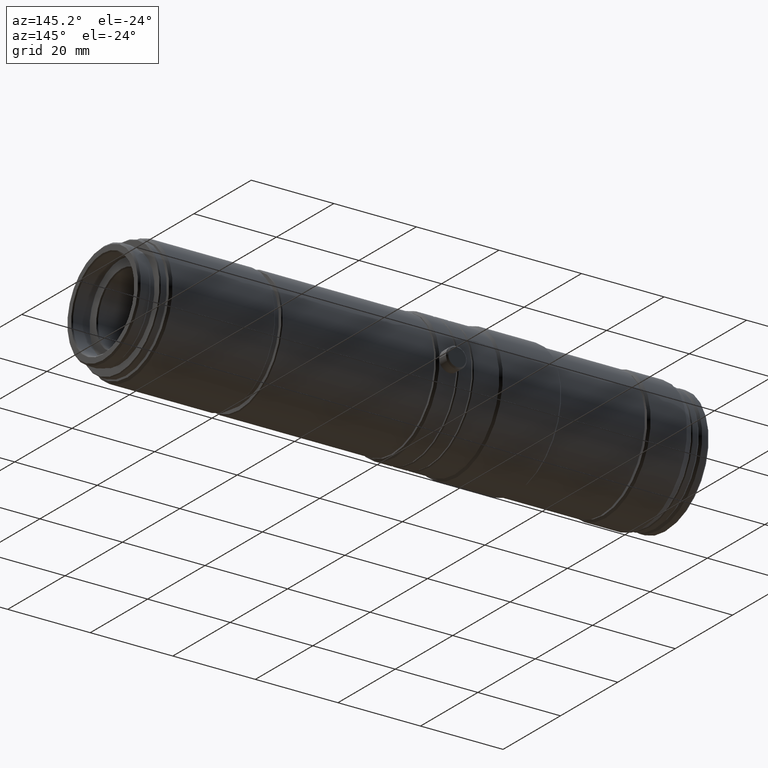
[diagram: clean part render]
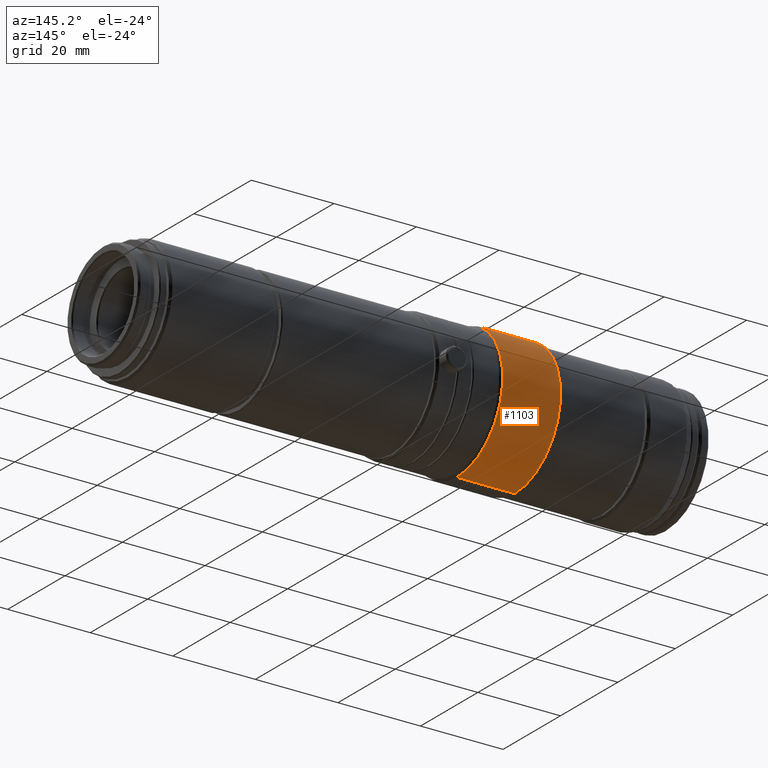
[diagram: same view with one face highlighted and labeled with its STEP entity id]
A machine part, auxiliary view. The second image highlights one B-rep face of the part: STEP entity #1103.
In plain terms, the highlighted cylindrical surface (partial cylindrical patch) has radius 15.9938 mm, axis along (-1, -0, -0).
Its self-contained STEP definition (entity closure, byte-faithful):
#103 = EDGE_CURVE ( 'NONE', #3420, #1134, #4501, .T. ) ;
#179 = DIRECTION ( 'NONE',  ( -1.000000000000000000, -0.0000000000000000000, -0.0000000000000000000 ) ) ;
#390 = ORIENTED_EDGE ( 'NONE', *, *, #1212, .T. ) ;
#393 = CIRCLE ( 'NONE', #3406, 15.99381588161426926 ) ;
#718 = CARTESIAN_POINT ( 'NONE',  ( -113.3259999999999224, -1.715136700551236072E-13, -15.99381588161426926 ) ) ;
#898 = ORIENTED_EDGE ( 'NONE', *, *, #4210, .T. ) ;
#1103 = ADVANCED_FACE ( 'NONE', ( #2090 ), #3861, .T. ) ;
#1124 = CARTESIAN_POINT ( 'NONE',  ( -80.99597258271282385, -1.715136700551236072E-13, -15.99381588161426926 ) ) ;
#1134 = VERTEX_POINT ( 'NONE', #718 ) ;
#1212 = EDGE_CURVE ( 'NONE', #3056, #1134, #3636, .T. ) ;
#1329 = DIRECTION ( 'NONE',  ( -1.000000000000000000, -0.0000000000000000000, -0.0000000000000000000 ) ) ;
#1347 = ORIENTED_EDGE ( 'NONE', *, *, #103, .F. ) ;
#1357 = VECTOR ( 'NONE', #179, 1000.000000000000000 ) ;
#1510 = AXIS2_PLACEMENT_3D ( 'NONE', #3266, #4307, #3194 ) ;
#1620 = CARTESIAN_POINT ( 'NONE',  ( -80.99597258271282385, -1.734723475976807094E-13, 15.99381588161426926 ) ) ;
#1630 = AXIS2_PLACEMENT_3D ( 'NONE', #3210, #4256, #4600 ) ;
#1688 = CARTESIAN_POINT ( 'NONE',  ( -99.32599999999993656, -1.734723475976807094E-13, 15.99381588161426926 ) ) ;
#1825 = ORIENTED_EDGE ( 'NONE', *, *, #3521, .F. ) ;
#2090 = FACE_OUTER_BOUND ( 'NONE', #2318, .T. ) ;
#2264 = CARTESIAN_POINT ( 'NONE',  ( -113.3259999999999224, -1.734723475976807094E-13, 15.99381588161426926 ) ) ;
#2318 = EDGE_LOOP ( 'NONE', ( #898, #390, #1347, #1825 ) ) ;
#2412 = CARTESIAN_POINT ( 'NONE',  ( -99.32599999999993656, -1.734723475976807094E-13, 0.0000000000000000000 ) ) ;
#2753 = DIRECTION ( 'NONE',  ( 0.0000000000000000000, 0.0000000000000000000, 1.000000000000000000 ) ) ;
#3056 = VERTEX_POINT ( 'NONE', #3650 ) ;
#3086 = LINE ( 'NONE', #1620, #1357 ) ;
#3194 = DIRECTION ( 'NONE',  ( 0.0000000000000000000, 0.0000000000000000000, 1.000000000000000000 ) ) ;
#3210 = CARTESIAN_POINT ( 'NONE',  ( -80.99597258271282385, -1.734723475976807094E-13, 0.0000000000000000000 ) ) ;
#3266 = CARTESIAN_POINT ( 'NONE',  ( -113.3259999999999224, -1.734723475976807094E-13, 0.0000000000000000000 ) ) ;
#3406 = AXIS2_PLACEMENT_3D ( 'NONE', #2412, #1329, #2753 ) ;
#3420 = VERTEX_POINT ( 'NONE', #2264 ) ;
#3521 = EDGE_CURVE ( 'NONE', #4226, #3420, #3086, .T. ) ;
#3636 = LINE ( 'NONE', #1124, #3944 ) ;
#3650 = CARTESIAN_POINT ( 'NONE',  ( -99.32599999999993656, -1.715136700551236072E-13, -15.99381588161426926 ) ) ;
#3861 = CYLINDRICAL_SURFACE ( 'NONE', #1630, 15.99381588161426926 ) ;
#3944 = VECTOR ( 'NONE', #4301, 1000.000000000000000 ) ;
#4210 = EDGE_CURVE ( 'NONE', #4226, #3056, #393, .T. ) ;
#4226 = VERTEX_POINT ( 'NONE', #1688 ) ;
#4256 = DIRECTION ( 'NONE',  ( -1.000000000000000000, -0.0000000000000000000, -0.0000000000000000000 ) ) ;
#4301 = DIRECTION ( 'NONE',  ( -1.000000000000000000, -0.0000000000000000000, -0.0000000000000000000 ) ) ;
#4307 = DIRECTION ( 'NONE',  ( -1.000000000000000000, -0.0000000000000000000, -0.0000000000000000000 ) ) ;
#4501 = CIRCLE ( 'NONE', #1510, 15.99381588161426926 ) ;
#4600 = DIRECTION ( 'NONE',  ( 0.0000000000000000000, 0.0000000000000000000, 1.000000000000000000 ) ) ;